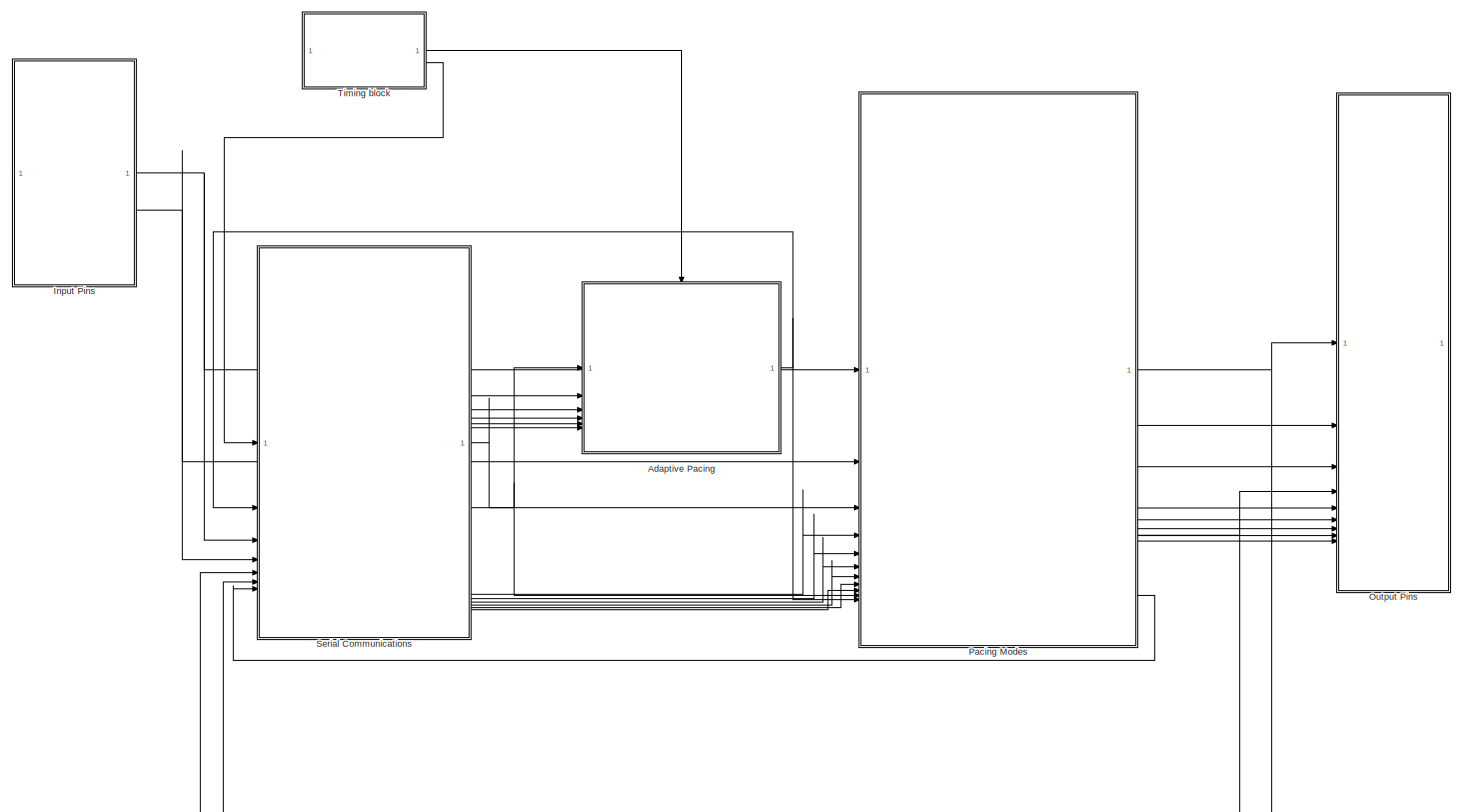
[diagram: root canvas - part 1/1, most of the canvas]
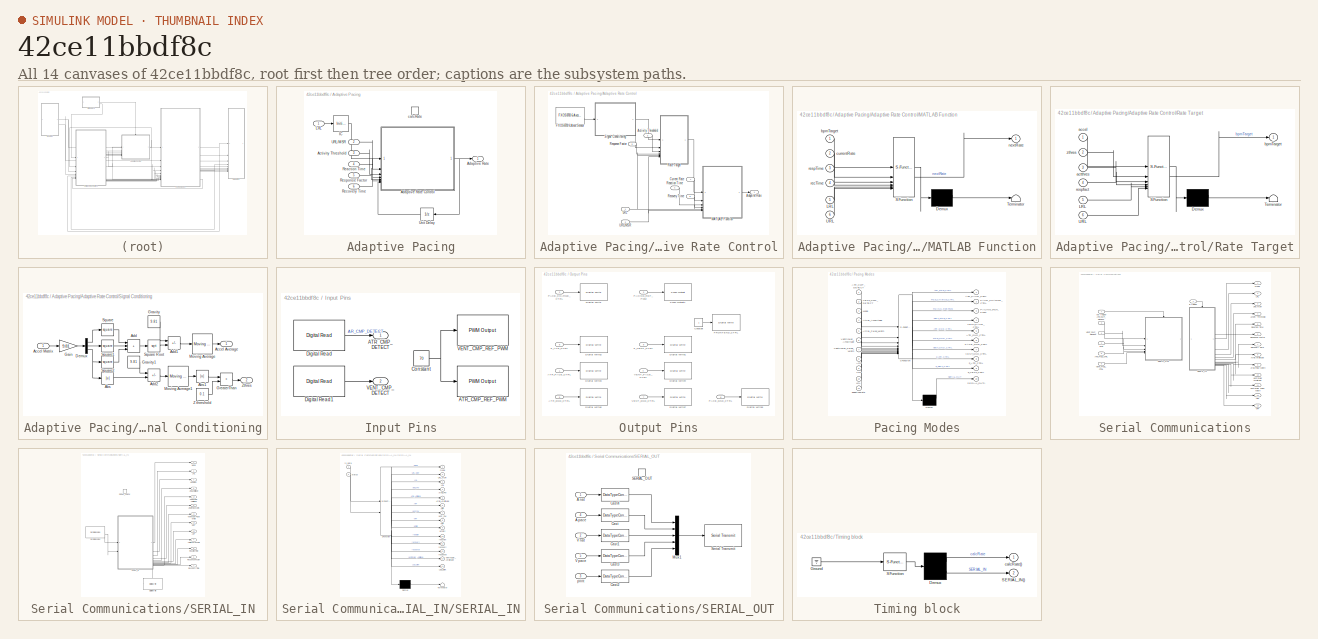
[diagram: thumbnail index - all 14 canvases of the model, root first then tree order]
MODEL slx_42ce11bbdf8c
KIND model
CONFIG AbsTol = auto
CONFIG EnableMultiTasking = on
CONFIG FixedStep = 1e-3
CONFIG MaxStep = auto
CONFIG MinStep = auto
CONFIG RelTol = 1e-3
CONFIG SampleTimeConstraint = Unconstrained
CONFIG SolverName = FixedStepAuto
CONFIG StartTime = 0.0
CONFIG StopTime = 5
BLOCK [SubSystem] Adaptive Pacing
BLOCK [Inport] Adaptive Pacing/Activity Threshold
  Port = 3
BLOCK [Outport] Adaptive Pacing/Adaptive Rate
BLOCK [SubSystem] Adaptive Pacing/Adaptive Rate Control
BLOCK [Inport] Adaptive Pacing/Adaptive Rate Control/Activity Threshold
  Port = 3
BLOCK [Outport] Adaptive Pacing/Adaptive Rate Control/Adaptive Rate
BLOCK [Inport] Adaptive Pacing/Adaptive Rate Control/Current Rate
  Port = 7
BLOCK [Reference] Adaptive Pacing/Adaptive Rate Control/FXOS8700 6-Axes Sensor  REF=frdmk64flib/FXOS8700 6-Axes Sensor
  SourceBlock = frdmk64flib/FXOS8700 6-Axes Sensor
  SourceType = freedomk64f.fxos8700
BLOCK [Inport] Adaptive Pacing/Adaptive Rate Control/LRL
BLOCK [SubSystem] Adaptive Pacing/Adaptive Rate Control/MATLAB Function
  ErrorFcn = Stateflow.Translate.translate
  PermitHierarchicalResolution = ExplicitOnly
  SFBlockType = MATLAB Function
  TreatAsAtomicUnit = on
BLOCK [Demux] Adaptive Pacing/Adaptive Rate Control/MATLAB Function/ Demux 
  Outputs = 1
BLOCK [S-Function] Adaptive Pacing/Adaptive Rate Control/MATLAB Function/ SFunction 
  EnableBusSupport = on
  FunctionName = sf_sfun
  PortCounts = [6 2]
  SFcnIsStateOwnerBlock = off
  SFunctionDeploymentMode = off
  Tag = Stateflow S-Function 5
BLOCK [Terminator] Adaptive Pacing/Adaptive Rate Control/MATLAB Function/ Terminator 
BLOCK [Inport] Adaptive Pacing/Adaptive Rate Control/MATLAB Function/LRL
  Port = 5
BLOCK [Inport] Adaptive Pacing/Adaptive Rate Control/MATLAB Function/URL
  Port = 6
BLOCK [Inport] Adaptive Pacing/Adaptive Rate Control/MATLAB Function/bpmTarget
BLOCK [Inport] Adaptive Pacing/Adaptive Rate Control/MATLAB Function/currentRate
  Port = 2
BLOCK [Outport] Adaptive Pacing/Adaptive Rate Control/MATLAB Function/nextRate
BLOCK [Inport] Adaptive Pacing/Adaptive Rate Control/MATLAB Function/recTime
  Port = 4
BLOCK [Inport] Adaptive Pacing/Adaptive Rate Control/MATLAB Function/respTime
  Port = 3
BLOCK [SubSystem] Adaptive Pacing/Adaptive Rate Control/Rate Target
  ErrorFcn = Stateflow.Translate.translate
  PermitHierarchicalResolution = ExplicitOnly
  SFBlockType = MATLAB Function
  TreatAsAtomicUnit = on
BLOCK [Demux] Adaptive Pacing/Adaptive Rate Control/Rate Target/ Demux 
  Outputs = 1
BLOCK [S-Function] Adaptive Pacing/Adaptive Rate Control/Rate Target/ SFunction 
  EnableBusSupport = on
  FunctionName = sf_sfun
  PortCounts = [6 2]
  SFcnIsStateOwnerBlock = off
  SFunctionDeploymentMode = off
  Tag = Stateflow S-Function 4
BLOCK [Terminator] Adaptive Pacing/Adaptive Rate Control/Rate Target/ Terminator 
BLOCK [Inport] Adaptive Pacing/Adaptive Rate Control/Rate Target/LRL
  Port = 5
BLOCK [Inport] Adaptive Pacing/Adaptive Rate Control/Rate Target/URL
  Port = 6
BLOCK [Inport] Adaptive Pacing/Adaptive Rate Control/Rate Target/accel
BLOCK [Inport] Adaptive Pacing/Adaptive Rate Control/Rate Target/actthres
  Port = 3
BLOCK [Outport] Adaptive Pacing/Adaptive Rate Control/Rate Target/bpmTarget
BLOCK [Inport] Adaptive Pacing/Adaptive Rate Control/Rate Target/respfact
  Port = 4
BLOCK [Inport] Adaptive Pacing/Adaptive Rate Control/Rate Target/zthres
  Port = 2
BLOCK [Inport] Adaptive Pacing/Adaptive Rate Control/Reaction Time
  Port = 4
BLOCK [Inport] Adaptive Pacing/Adaptive Rate Control/Recovery Time
  Port = 6
BLOCK [Inport] Adaptive Pacing/Adaptive Rate Control/Response Factor
  Port = 5
BLOCK [SubSystem] Adaptive Pacing/Adaptive Rate Control/Signal Conditioning
BLOCK [Abs] Adaptive Pacing/Adaptive Rate Control/Signal Conditioning/Abs
  SaturateOnIntegerOverflow = off
BLOCK [Abs] Adaptive Pacing/Adaptive Rate Control/Signal Conditioning/Abs1
  SaturateOnIntegerOverflow = off
BLOCK [Outport] Adaptive Pacing/Adaptive Rate Control/Signal Conditioning/Accel Average
BLOCK [Inport] Adaptive Pacing/Adaptive Rate Control/Signal Conditioning/Accel Matrix
BLOCK [Sum] Adaptive Pacing/Adaptive Rate Control/Signal Conditioning/Add
  IconShape = rectangular
  Inputs = +++
BLOCK [Sum] Adaptive Pacing/Adaptive Rate Control/Signal Conditioning/Add1
  IconShape = rectangular
  Inputs = -+
BLOCK [Sum] Adaptive Pacing/Adaptive Rate Control/Signal Conditioning/Add2
  IconShape = rectangular
  Inputs = -+
BLOCK [Demux] Adaptive Pacing/Adaptive Rate Control/Signal Conditioning/Demux
  Outputs = 3
BLOCK [Gain] Adaptive Pacing/Adaptive Rate Control/Signal Conditioning/Gain
  Gain = 9.81
BLOCK [Constant] Adaptive Pacing/Adaptive Rate Control/Signal Conditioning/Gravity
  Value = 9.81
BLOCK [Constant] Adaptive Pacing/Adaptive Rate Control/Signal Conditioning/Gravity1
  Value = 9.81
BLOCK [RelationalOperator] Adaptive Pacing/Adaptive Rate Control/Signal Conditioning/GreaterThan
  InputSameDT = off
  Operator = >
  OutDataTypeStr = boolean
  RndMeth = Simplest
BLOCK [Reference] Adaptive Pacing/Adaptive Rate Control/Signal Conditioning/Moving Average  REF=dspstat3/Moving
Average
  SourceBlock = dspstat3/Moving\nAverage
  SourceType = dsp.simulink.MovingAverage
BLOCK [Reference] Adaptive Pacing/Adaptive Rate Control/Signal Conditioning/Moving Average1  REF=dspstat3/Moving
Average
  SourceBlock = dspstat3/Moving\nAverage
  SourceType = dsp.simulink.MovingAverage
BLOCK [Math] Adaptive Pacing/Adaptive Rate Control/Signal Conditioning/Square
  Operator = square
BLOCK [Sqrt] Adaptive Pacing/Adaptive Rate Control/Signal Conditioning/Square Root
BLOCK [Math] Adaptive Pacing/Adaptive Rate Control/Signal Conditioning/Square1
  Operator = square
BLOCK [Math] Adaptive Pacing/Adaptive Rate Control/Signal Conditioning/Square2
  Operator = square
BLOCK [Constant] Adaptive Pacing/Adaptive Rate Control/Signal Conditioning/Z threshold
  Value = 0.1
BLOCK [Outport] Adaptive Pacing/Adaptive Rate Control/Signal Conditioning/Zthres
  Port = 2
BLOCK [Inport] Adaptive Pacing/Adaptive Rate Control/URL//MSR
  Port = 2
BLOCK [InitialCondition] Adaptive Pacing/IC
  Value = 60
BLOCK [Inport] Adaptive Pacing/LRL
BLOCK [Inport] Adaptive Pacing/Reaction Time
  Port = 4
BLOCK [Inport] Adaptive Pacing/Recovery Time
  Port = 6
BLOCK [Inport] Adaptive Pacing/Response Factor
  Port = 5
BLOCK [Inport] Adaptive Pacing/URL//MSR
  Port = 2
BLOCK [UnitDelay] Adaptive Pacing/Unit Delay
  HasFrameUpgradeWarning = on
  NameLocation = top
  SampleTime = -1
BLOCK [TriggerPort] Adaptive Pacing/calcRate
  StatesWhenEnabling = held
  TriggerType = function-call
  VariantControl = (inherit)
BLOCK [SubSystem] Input Pins
  Description = Maps the digital and analog input pins of the K64F to named variables as defined in Pacemaker Shield Explained
BLOCK [Outport] Input Pins/ATR_CMP_DETECT
BLOCK [Reference] Input Pins/ATR_CMP_REF_PWM  REF=frdmk64flib/PWM Output
  SourceBlock = frdmk64flib/PWM Output
  SourceType = freedomk64f.PWMOutput
BLOCK [Constant] Input Pins/Constant
  Value = 70
BLOCK [Reference] Input Pins/Digital Read  REF=frdmk64flib/Digital Read
  SourceBlock = frdmk64flib/Digital Read
  SourceType = freedomk64f.DigitalRead
BLOCK [Reference] Input Pins/Digital Read1  REF=frdmk64flib/Digital Read
  SourceBlock = frdmk64flib/Digital Read
  SourceType = freedomk64f.DigitalRead
BLOCK [Outport] Input Pins/VENT_CMP_DETECT
  Port = 2
BLOCK [Reference] Input Pins/VENT_CMP_REF_PWM  REF=frdmk64flib/PWM Output
  SourceBlock = frdmk64flib/PWM Output
  SourceType = freedomk64f.PWMOutput
BLOCK [SubSystem] Output Pins
BLOCK [Inport] Output Pins/ATR_GND_CTRL
  Port = 5
BLOCK [Inport] Output Pins/ATR_PACE_CTRL
BLOCK [Constant] Output Pins/Constant
BLOCK [Reference] Output Pins/Digital Write  REF=frdmk64flib/Digital Write
  SourceBlock = frdmk64flib/Digital Write
  SourceType = freedomk64f.DigitalWrite
BLOCK [Reference] Output Pins/Digital Write1  REF=frdmk64flib/Digital Write
  SourceBlock = frdmk64flib/Digital Write
  SourceType = freedomk64f.DigitalWrite
BLOCK [Reference] Output Pins/Digital Write2  REF=frdmk64flib/Digital Write
  SourceBlock = frdmk64flib/Digital Write
  SourceType = freedomk64f.DigitalWrite
BLOCK [Reference] Output Pins/Digital Write3  REF=frdmk64flib/Digital Write
  SourceBlock = frdmk64flib/Digital Write
  SourceType = freedomk64f.DigitalWrite
BLOCK [Reference] Output Pins/Digital Write4  REF=frdmk64flib/Digital Write
  SourceBlock = frdmk64flib/Digital Write
  SourceType = freedomk64f.DigitalWrite
BLOCK [Reference] Output Pins/Digital Write5  REF=frdmk64flib/Digital Write
  SourceBlock = frdmk64flib/Digital Write
  SourceType = freedomk64f.DigitalWrite
BLOCK [Reference] Output Pins/Digital Write6  REF=frdmk64flib/Digital Write
  SourceBlock = frdmk64flib/Digital Write
  SourceType = freedomk64f.DigitalWrite
BLOCK [Reference] Output Pins/Digital Write7  REF=frdmk64flib/Digital Write
  SourceBlock = frdmk64flib/Digital Write
  SourceType = freedomk64f.DigitalWrite
BLOCK [Reference] Output Pins/FRONTEND_CTRL  REF=frdmk64flib/Digital Write
  SourceBlock = frdmk64flib/Digital Write
  SourceType = freedomk64f.DigitalWrite
BLOCK [Inport] Output Pins/PACE_CHARGE_CTRL
  Port = 2
BLOCK [Inport] Output Pins/PACE_GND_CTRL
  Port = 6
BLOCK [Inport] Output Pins/PACING_REF_PWM
  Port = 3
BLOCK [Reference] Output Pins/PWM Output1  REF=frdmk64flib/PWM Output
  SourceBlock = frdmk64flib/PWM Output
  SourceType = freedomk64f.PWMOutput
BLOCK [Inport] Output Pins/VENT_GND_CTRL
  Port = 7
BLOCK [Inport] Output Pins/VENT_PACE_CTRL
  Port = 4
BLOCK [Inport] Output Pins/Z_ATR_CTRL
  Port = 8
BLOCK [Inport] Output Pins/Z_VENT_CTRL
  Port = 9
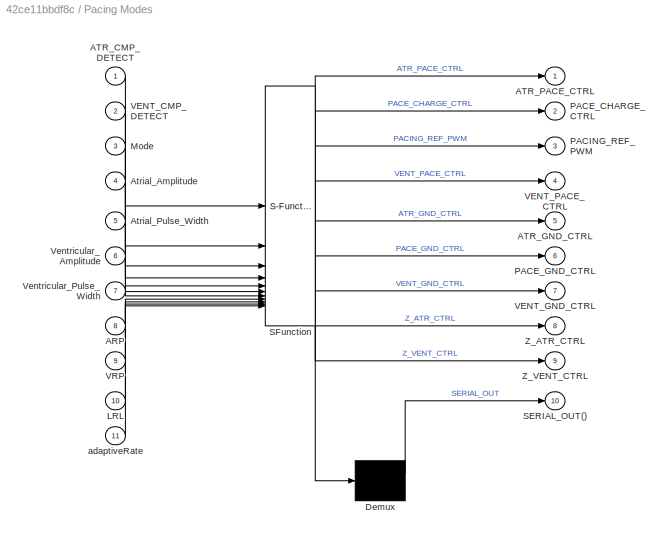
BLOCK [SubSystem] Pacing Modes
  ErrorFcn = Stateflow.Translate.translate
  PermitHierarchicalResolution = ExplicitOnly
  PortSchema = {"entries":[{"content":{"sides":[{"content":{"connectorIds":["In1","In2","In3","In10","In11","In4","In5","In6","In7","In8","In9"]},"type":"ConnectorPlacement.EquallySpacedRectSide","uuid":"f4000909-515d-4a0d-a478-4ca4207159b3"},{"content":{"connectorIds":["Out1","Out2","Out3","Out4","Out5","Out6","Out7","Out8","Out9","Out10"],"side":"RIGHT"},"type":"ConnectorPlacement.EquallySpacedRectSide","uuid"...<+348ch>
  SFBlockType = Chart
  TreatAsAtomicUnit = on
BLOCK [Demux] Pacing Modes/ Demux 
  Outputs = 1
BLOCK [S-Function] Pacing Modes/ SFunction 
  EnableBusSupport = on
  FunctionName = sf_sfun
  PortCounts = [11 10]
  SFcnIsStateOwnerBlock = off
  SFunctionDeploymentMode = off
  Tag = Stateflow S-Function 3
BLOCK [Inport] Pacing Modes/ARP
  Port = 8
BLOCK [Inport] Pacing Modes/ATR_CMP_DETECT
BLOCK [Outport] Pacing Modes/ATR_GND_CTRL
  Port = 5
BLOCK [Outport] Pacing Modes/ATR_PACE_CTRL
BLOCK [Inport] Pacing Modes/Atrial_Amplitude
  Port = 4
BLOCK [Inport] Pacing Modes/Atrial_Pulse_Width
  Port = 5
BLOCK [Inport] Pacing Modes/LRL
  Port = 10
BLOCK [Inport] Pacing Modes/Mode
  Port = 3
BLOCK [Outport] Pacing Modes/PACE_CHARGE_CTRL
  Port = 2
BLOCK [Outport] Pacing Modes/PACE_GND_CTRL
  Port = 6
BLOCK [Outport] Pacing Modes/PACING_REF_PWM
  Port = 3
BLOCK [Outport] Pacing Modes/SERIAL_OUT()
  Port = 10
BLOCK [Inport] Pacing Modes/VENT_CMP_DETECT
  Port = 2
BLOCK [Outport] Pacing Modes/VENT_GND_CTRL
  Port = 7
BLOCK [Outport] Pacing Modes/VENT_PACE_CTRL
  Port = 4
BLOCK [Inport] Pacing Modes/VRP
  Port = 9
BLOCK [Inport] Pacing Modes/Ventricular_Amplitude
  Port = 6
BLOCK [Inport] Pacing Modes/Ventricular_Pulse_Width
  Port = 7
BLOCK [Outport] Pacing Modes/Z_ATR_CTRL
  Port = 8
BLOCK [Outport] Pacing Modes/Z_VENT_CTRL
  Port = 9
BLOCK [Inport] Pacing Modes/adaptiveRate
  Port = 11
BLOCK [SubSystem] Serial Communications
BLOCK [Outport] Serial Communications/ARP
  Port = 12
BLOCK [Inport] Serial Communications/ATR_CMP_DETECT
  Port = 3
BLOCK [Inport] Serial Communications/ATR_PACE_CTRL
  Port = 5
BLOCK [Outport] Serial Communications/Activity Threshold
  Port = 4
BLOCK [Outport] Serial Communications/Atrial Amplitude
  Port = 8
BLOCK [Outport] Serial Communications/Atrial Pulse Width
  Port = 9
BLOCK [Outport] Serial Communications/LRL
  Port = 2
BLOCK [Outport] Serial Communications/Mode
BLOCK [Outport] Serial Communications/Reaction Time
  Port = 5
BLOCK [Outport] Serial Communications/Recovery Time
  Port = 7
BLOCK [Outport] Serial Communications/Response Factor
  Port = 6
BLOCK [SubSystem] Serial Communications/SERIAL_IN
BLOCK [Outport] Serial Communications/SERIAL_IN/ARP
  Port = 12
BLOCK [Outport] Serial Communications/SERIAL_IN/Activity Threshold
  Port = 4
BLOCK [Outport] Serial Communications/SERIAL_IN/Atrial Amplitude
  Port = 8
BLOCK [Outport] Serial Communications/SERIAL_IN/Atrial Pulse Width
  Port = 9
BLOCK [Reference] Serial Communications/SERIAL_IN/Digital Write  REF=frdmk64flib/Digital Write
  SourceBlock = frdmk64flib/Digital Write
  SourceType = freedomk64f.DigitalWrite
BLOCK [Outport] Serial Communications/SERIAL_IN/LRL
  Port = 2
BLOCK [Outport] Serial Communications/SERIAL_IN/Mode
BLOCK [Outport] Serial Communications/SERIAL_IN/Reaction Time
  Port = 5
BLOCK [Outport] Serial Communications/SERIAL_IN/Recovery Time
  Port = 7
BLOCK [Outport] Serial Communications/SERIAL_IN/Response Factor
  Port = 6
BLOCK [TriggerPort] Serial Communications/SERIAL_IN/SERIAL_CHECK
  StatesWhenEnabling = held
  TriggerType = function-call
  VariantControl = (inherit)
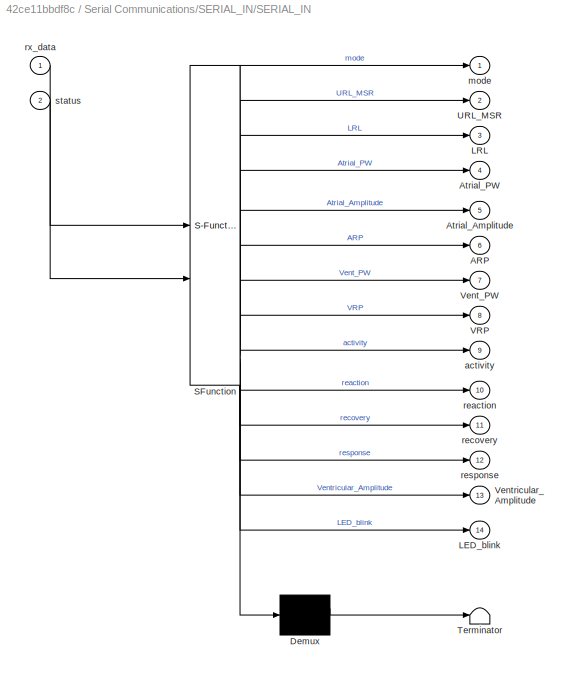
BLOCK [SubSystem] Serial Communications/SERIAL_IN/SERIAL_IN
  ErrorFcn = Stateflow.Translate.translate
  PermitHierarchicalResolution = ExplicitOnly
  PortSchema = {"entries":[{"content":{"sides":[{"content":{"connectorIds":["In1","In2"]},"type":"ConnectorPlacement.EquallySpacedRectSide","uuid":"ebf63f13-cff1-4dfd-8253-a37fed9b5330"},{"content":{"connectorIds":["Out1","Out3","Out2","Out5","Out13","Out4","Out7","Out8","Out6","Out9","Out10","Out12","Out11"],"side":"RIGHT"},"type":"ConnectorPlacement.EquallySpacedRectSide","uuid":"8941ae37-13b3-448c-8772-44937e...<+467ch>
  SFBlockType = Chart
  TreatAsAtomicUnit = on
BLOCK [Demux] Serial Communications/SERIAL_IN/SERIAL_IN/ Demux 
  Outputs = 1
BLOCK [S-Function] Serial Communications/SERIAL_IN/SERIAL_IN/ SFunction 
  EnableBusSupport = on
  FunctionName = sf_sfun
  PortCounts = [2 15]
  SFcnIsStateOwnerBlock = off
  SFunctionDeploymentMode = off
  Tag = Stateflow S-Function 2
BLOCK [Terminator] Serial Communications/SERIAL_IN/SERIAL_IN/ Terminator 
BLOCK [Outport] Serial Communications/SERIAL_IN/SERIAL_IN/ARP
  Port = 6
BLOCK [Outport] Serial Communications/SERIAL_IN/SERIAL_IN/Atrial_Amplitude
  Port = 5
BLOCK [Outport] Serial Communications/SERIAL_IN/SERIAL_IN/Atrial_PW
  Port = 4
BLOCK [Outport] Serial Communications/SERIAL_IN/SERIAL_IN/LED_blink
  Port = 14
BLOCK [Outport] Serial Communications/SERIAL_IN/SERIAL_IN/LRL
  Port = 3
BLOCK [Outport] Serial Communications/SERIAL_IN/SERIAL_IN/URL_MSR
  Port = 2
BLOCK [Outport] Serial Communications/SERIAL_IN/SERIAL_IN/VRP
  Port = 8
BLOCK [Outport] Serial Communications/SERIAL_IN/SERIAL_IN/Vent_PW
  Port = 7
BLOCK [Outport] Serial Communications/SERIAL_IN/SERIAL_IN/Ventricular_Amplitude
  Port = 13
BLOCK [Outport] Serial Communications/SERIAL_IN/SERIAL_IN/activity
  Port = 9
BLOCK [Outport] Serial Communications/SERIAL_IN/SERIAL_IN/mode
BLOCK [Outport] Serial Communications/SERIAL_IN/SERIAL_IN/reaction
  Port = 10
BLOCK [Outport] Serial Communications/SERIAL_IN/SERIAL_IN/recovery
  Port = 11
BLOCK [Outport] Serial Communications/SERIAL_IN/SERIAL_IN/response
  Port = 12
BLOCK [Inport] Serial Communications/SERIAL_IN/SERIAL_IN/rx_data
BLOCK [Inport] Serial Communications/SERIAL_IN/SERIAL_IN/status
  Port = 2
BLOCK [Reference] Serial Communications/SERIAL_IN/Serial Receive  REF=frdmk64flib/Serial Receive
  SourceBlock = frdmk64flib/Serial Receive
  SourceType = freedomk64f.SCIRead
BLOCK [Outport] Serial Communications/SERIAL_IN/URL//MSR
  Port = 3
BLOCK [Outport] Serial Communications/SERIAL_IN/VRP
  Port = 13
BLOCK [Outport] Serial Communications/SERIAL_IN/Ventricular Amplitude
  Port = 10
BLOCK [Outport] Serial Communications/SERIAL_IN/Ventricular Pulse Width
  Port = 11
BLOCK [SubSystem] Serial Communications/SERIAL_OUT
BLOCK [Inport] Serial Communications/SERIAL_OUT/A nat
BLOCK [Inport] Serial Communications/SERIAL_OUT/A pace
  Port = 4
BLOCK [DataTypeConversion] Serial Communications/SERIAL_OUT/Cast
  OutDataTypeStr = uint8
  RndMeth = Floor
  SaturateOnIntegerOverflow = off
BLOCK [DataTypeConversion] Serial Communications/SERIAL_OUT/Cast1
  OutDataTypeStr = uint8
  RndMeth = Floor
  SaturateOnIntegerOverflow = off
BLOCK [DataTypeConversion] Serial Communications/SERIAL_OUT/Cast2
  OutDataTypeStr = uint8
  RndMeth = Floor
  SaturateOnIntegerOverflow = off
BLOCK [DataTypeConversion] Serial Communications/SERIAL_OUT/Cast3
  OutDataTypeStr = uint8
  RndMeth = Floor
  SaturateOnIntegerOverflow = off
BLOCK [DataTypeConversion] Serial Communications/SERIAL_OUT/Cast4
  OutDataTypeStr = uint8
  RndMeth = Floor
  SaturateOnIntegerOverflow = off
BLOCK [Mux] Serial Communications/SERIAL_OUT/Mux1
  DisplayOption = bar
  Inputs = 5
BLOCK [TriggerPort] Serial Communications/SERIAL_OUT/SERIAL_OUT
  PortDimensions = 1
  StatesWhenEnabling = held
  TriggerType = function-call
  VariantControl = (inherit)
BLOCK [Reference] Serial Communications/SERIAL_OUT/Serial Transmit  REF=frdmk64flib/Serial Transmit
  SourceBlock = frdmk64flib/Serial Transmit
  SourceType = freedomk64f.SCIWrite
BLOCK [Inport] Serial Communications/SERIAL_OUT/V nat
  Port = 2
BLOCK [Inport] Serial Communications/SERIAL_OUT/V pace
  Port = 5
BLOCK [Inport] Serial Communications/SERIAL_OUT/print
  Port = 3
BLOCK [Outport] Serial Communications/URL//MSR
  Port = 3
BLOCK [Inport] Serial Communications/VENT_CMP_DETECT
  Port = 4
BLOCK [Inport] Serial Communications/VENT_PACE_CTRL
  Port = 6
BLOCK [Outport] Serial Communications/VRP
  Port = 13
BLOCK [Outport] Serial Communications/Ventricular Amplitude
  Port = 10
BLOCK [Outport] Serial Communications/Ventricular Pulse Width
  Port = 11
BLOCK [Inport] Serial Communications/in trigger
BLOCK [Inport] Serial Communications/out trigger
  Port = 7
BLOCK [Inport] Serial Communications/print
  Port = 2
BLOCK [SubSystem] Timing block
  ErrorFcn = Stateflow.Translate.translate
  PermitHierarchicalResolution = ExplicitOnly
  SFBlockType = Chart
  TreatAsAtomicUnit = on
BLOCK [Demux] Timing block/ Demux 
  Outputs = 2
BLOCK [Ground] Timing block/ Ground 
BLOCK [S-Function] Timing block/ SFunction 
  EnableBusSupport = on
  FunctionName = sf_sfun
  PortCounts = [1 1]
  SFcnIsStateOwnerBlock = off
  SFunctionDeploymentMode = off
  Tag = Stateflow S-Function 1
BLOCK [Outport] Timing block/SERIAL_IN()
  Port = 2
BLOCK [Outport] Timing block/calcRate()
LINE Adaptive Pacing/Activity Threshold:1 -> Adaptive Pacing/Adaptive Rate Control:3
LINE Adaptive Pacing/Adaptive Rate Control/Activity Threshold:1 -> Adaptive Pacing/Adaptive Rate Control/Rate Target:3
LINE Adaptive Pacing/Adaptive Rate Control/Current Rate:1 -> Adaptive Pacing/Adaptive Rate Control/MATLAB Function:2
LINE Adaptive Pacing/Adaptive Rate Control/FXOS8700 6-Axes Sensor:2 -> Adaptive Pacing/Adaptive Rate Control/Signal Conditioning:1
NET Adaptive Pacing/Adaptive Rate Control/LRL:1 -> Adaptive Pacing/Adaptive Rate Control/MATLAB Function:5, Adaptive Pacing/Adaptive Rate Control/Rate Target:5
LINE Adaptive Pacing/Adaptive Rate Control/MATLAB Function:1 -> Adaptive Pacing/Adaptive Rate Control/Adaptive Rate:1
LINE Adaptive Pacing/Adaptive Rate Control/Rate Target:1 -> Adaptive Pacing/Adaptive Rate Control/MATLAB Function:1
LINE Adaptive Pacing/Adaptive Rate Control/Reaction Time:1 -> Adaptive Pacing/Adaptive Rate Control/MATLAB Function:3
LINE Adaptive Pacing/Adaptive Rate Control/Recovery Time:1 -> Adaptive Pacing/Adaptive Rate Control/MATLAB Function:4
LINE Adaptive Pacing/Adaptive Rate Control/Response Factor:1 -> Adaptive Pacing/Adaptive Rate Control/Rate Target:4
LINE Adaptive Pacing/Adaptive Rate Control/Signal Conditioning/Abs1:1 -> Adaptive Pacing/Adaptive Rate Control/Signal Conditioning/GreaterThan:1
LINE Adaptive Pacing/Adaptive Rate Control/Signal Conditioning/Abs:1 -> Adaptive Pacing/Adaptive Rate Control/Signal Conditioning/Add2:2
LINE Adaptive Pacing/Adaptive Rate Control/Signal Conditioning/Accel Matrix:1 -> Adaptive Pacing/Adaptive Rate Control/Signal Conditioning/Gain:1
LINE Adaptive Pacing/Adaptive Rate Control/Signal Conditioning/Add1:1 -> Adaptive Pacing/Adaptive Rate Control/Signal Conditioning/Moving Average:1
LINE Adaptive Pacing/Adaptive Rate Control/Signal Conditioning/Add2:1 -> Adaptive Pacing/Adaptive Rate Control/Signal Conditioning/Moving Average1:1
LINE Adaptive Pacing/Adaptive Rate Control/Signal Conditioning/Add:1 -> Adaptive Pacing/Adaptive Rate Control/Signal Conditioning/Square Root:1
LINE Adaptive Pacing/Adaptive Rate Control/Signal Conditioning/Demux:1 -> Adaptive Pacing/Adaptive Rate Control/Signal Conditioning/Square:1
LINE Adaptive Pacing/Adaptive Rate Control/Signal Conditioning/Demux:2 -> Adaptive Pacing/Adaptive Rate Control/Signal Conditioning/Square1:1
NET Adaptive Pacing/Adaptive Rate Control/Signal Conditioning/Demux:3 -> Adaptive Pacing/Adaptive Rate Control/Signal Conditioning/Abs:1, Adaptive Pacing/Adaptive Rate Control/Signal Conditioning/Square2:1
LINE Adaptive Pacing/Adaptive Rate Control/Signal Conditioning/Gain:1 -> Adaptive Pacing/Adaptive Rate Control/Signal Conditioning/Demux:1
LINE Adaptive Pacing/Adaptive Rate Control/Signal Conditioning/Gravity1:1 -> Adaptive Pacing/Adaptive Rate Control/Signal Conditioning/Add2:1
LINE Adaptive Pacing/Adaptive Rate Control/Signal Conditioning/Gravity:1 -> Adaptive Pacing/Adaptive Rate Control/Signal Conditioning/Add1:1
LINE Adaptive Pacing/Adaptive Rate Control/Signal Conditioning/GreaterThan:1 -> Adaptive Pacing/Adaptive Rate Control/Signal Conditioning/Zthres:1
LINE Adaptive Pacing/Adaptive Rate Control/Signal Conditioning/Moving Average1:1 -> Adaptive Pacing/Adaptive Rate Control/Signal Conditioning/Abs1:1
LINE Adaptive Pacing/Adaptive Rate Control/Signal Conditioning/Moving Average:1 -> Adaptive Pacing/Adaptive Rate Control/Signal Conditioning/Accel Average:1
LINE Adaptive Pacing/Adaptive Rate Control/Signal Conditioning/Square Root:1 -> Adaptive Pacing/Adaptive Rate Control/Signal Conditioning/Add1:2
LINE Adaptive Pacing/Adaptive Rate Control/Signal Conditioning/Square1:1 -> Adaptive Pacing/Adaptive Rate Control/Signal Conditioning/Add:2
LINE Adaptive Pacing/Adaptive Rate Control/Signal Conditioning/Square2:1 -> Adaptive Pacing/Adaptive Rate Control/Signal Conditioning/Add:3
LINE Adaptive Pacing/Adaptive Rate Control/Signal Conditioning/Square:1 -> Adaptive Pacing/Adaptive Rate Control/Signal Conditioning/Add:1
LINE Adaptive Pacing/Adaptive Rate Control/Signal Conditioning/Z threshold:1 -> Adaptive Pacing/Adaptive Rate Control/Signal Conditioning/GreaterThan:2
LINE Adaptive Pacing/Adaptive Rate Control/Signal Conditioning:1 -> Adaptive Pacing/Adaptive Rate Control/Rate Target:1
LINE Adaptive Pacing/Adaptive Rate Control/Signal Conditioning:2 -> Adaptive Pacing/Adaptive Rate Control/Rate Target:2
NET Adaptive Pacing/Adaptive Rate Control/URL//MSR:1 -> Adaptive Pacing/Adaptive Rate Control/MATLAB Function:6, Adaptive Pacing/Adaptive Rate Control/Rate Target:6
NET Adaptive Pacing/Adaptive Rate Control:1 -> Adaptive Pacing/Adaptive Rate:1, Adaptive Pacing/Unit Delay:1
LINE Adaptive Pacing/IC:1 -> Adaptive Pacing/Adaptive Rate Control:1
LINE Adaptive Pacing/LRL:1 -> Adaptive Pacing/IC:1
LINE Adaptive Pacing/Reaction Time:1 -> Adaptive Pacing/Adaptive Rate Control:4
LINE Adaptive Pacing/Recovery Time:1 -> Adaptive Pacing/Adaptive Rate Control:6
LINE Adaptive Pacing/Response Factor:1 -> Adaptive Pacing/Adaptive Rate Control:5
LINE Adaptive Pacing/URL//MSR:1 -> Adaptive Pacing/Adaptive Rate Control:2
LINE Adaptive Pacing/Unit Delay:1 -> Adaptive Pacing/Adaptive Rate Control:7
NET Adaptive Pacing:1 -> Pacing Modes:11, Serial Communications:2
NET Input Pins/Constant:1 -> Input Pins/ATR_CMP_REF_PWM:1, Input Pins/VENT_CMP_REF_PWM:1
LINE Input Pins/Digital Read1:1 -> Input Pins/VENT_CMP_DETECT:1
LINE Input Pins/Digital Read:1 -> Input Pins/ATR_CMP_DETECT:1
NET Input Pins:1 -> Pacing Modes:1, Serial Communications:3
NET Input Pins:2 -> Pacing Modes:2, Serial Communications:4
LINE Output Pins/ATR_GND_CTRL:1 -> Output Pins/Digital Write6:1
LINE Output Pins/ATR_PACE_CTRL:1 -> Output Pins/Digital Write3:1
LINE Output Pins/Constant:1 -> Output Pins/FRONTEND_CTRL:1
LINE Output Pins/PACE_CHARGE_CTRL:1 -> Output Pins/Digital Write:1
LINE Output Pins/PACE_GND_CTRL:1 -> Output Pins/Digital Write5:1
LINE Output Pins/PACING_REF_PWM:1 -> Output Pins/PWM Output1:1
LINE Output Pins/VENT_GND_CTRL:1 -> Output Pins/Digital Write7:1
LINE Output Pins/VENT_PACE_CTRL:1 -> Output Pins/Digital Write4:1
LINE Output Pins/Z_ATR_CTRL:1 -> Output Pins/Digital Write2:1
LINE Output Pins/Z_VENT_CTRL:1 -> Output Pins/Digital Write1:1
NET Pacing Modes:1 -> Output Pins:1, Serial Communications:5
LINE Pacing Modes:10 -> Serial Communications:7
LINE Pacing Modes:2 -> Output Pins:2
LINE Pacing Modes:3 -> Output Pins:3
NET Pacing Modes:4 -> Output Pins:4, Serial Communications:6
LINE Pacing Modes:5 -> Output Pins:5
LINE Pacing Modes:6 -> Output Pins:6
LINE Pacing Modes:7 -> Output Pins:7
LINE Pacing Modes:8 -> Output Pins:8
LINE Pacing Modes:9 -> Output Pins:9
LINE Serial Communications/ATR_CMP_DETECT:1 -> Serial Communications/SERIAL_OUT:1
LINE Serial Communications/ATR_PACE_CTRL:1 -> Serial Communications/SERIAL_OUT:4
LINE Serial Communications/SERIAL_IN/SERIAL_IN:1 -> Serial Communications/SERIAL_IN/Mode:1
LINE Serial Communications/SERIAL_IN/SERIAL_IN:10 -> Serial Communications/SERIAL_IN/Reaction Time:1
LINE Serial Communications/SERIAL_IN/SERIAL_IN:11 -> Serial Communications/SERIAL_IN/Recovery Time:1
LINE Serial Communications/SERIAL_IN/SERIAL_IN:12 -> Serial Communications/SERIAL_IN/Response Factor:1
LINE Serial Communications/SERIAL_IN/SERIAL_IN:13 -> Serial Communications/SERIAL_IN/Ventricular Amplitude:1
LINE Serial Communications/SERIAL_IN/SERIAL_IN:14 -> Serial Communications/SERIAL_IN/Digital Write:1
LINE Serial Communications/SERIAL_IN/SERIAL_IN:2 -> Serial Communications/SERIAL_IN/URL//MSR:1
LINE Serial Communications/SERIAL_IN/SERIAL_IN:3 -> Serial Communications/SERIAL_IN/LRL:1
LINE Serial Communications/SERIAL_IN/SERIAL_IN:4 -> Serial Communications/SERIAL_IN/Atrial Pulse Width:1
LINE Serial Communications/SERIAL_IN/SERIAL_IN:5 -> Serial Communications/SERIAL_IN/Atrial Amplitude:1
LINE Serial Communications/SERIAL_IN/SERIAL_IN:6 -> Serial Communications/SERIAL_IN/ARP:1
LINE Serial Communications/SERIAL_IN/SERIAL_IN:7 -> Serial Communications/SERIAL_IN/Ventricular Pulse Width:1
LINE Serial Communications/SERIAL_IN/SERIAL_IN:8 -> Serial Communications/SERIAL_IN/VRP:1
LINE Serial Communications/SERIAL_IN/SERIAL_IN:9 -> Serial Communications/SERIAL_IN/Activity Threshold:1
LINE Serial Communications/SERIAL_IN/Serial Receive:1 -> Serial Communications/SERIAL_IN/SERIAL_IN:1
LINE Serial Communications/SERIAL_IN/Serial Receive:2 -> Serial Communications/SERIAL_IN/SERIAL_IN:2
LINE Serial Communications/SERIAL_IN:1 -> Serial Communications/Mode:1
LINE Serial Communications/SERIAL_IN:10 -> Serial Communications/Ventricular Amplitude:1
LINE Serial Communications/SERIAL_IN:11 -> Serial Communications/Ventricular Pulse Width:1
LINE Serial Communications/SERIAL_IN:12 -> Serial Communications/ARP:1
LINE Serial Communications/SERIAL_IN:13 -> Serial Communications/VRP:1
LINE Serial Communications/SERIAL_IN:2 -> Serial Communications/LRL:1
LINE Serial Communications/SERIAL_IN:3 -> Serial Communications/URL//MSR:1
LINE Serial Communications/SERIAL_IN:4 -> Serial Communications/Activity Threshold:1
LINE Serial Communications/SERIAL_IN:5 -> Serial Communications/Reaction Time:1
LINE Serial Communications/SERIAL_IN:6 -> Serial Communications/Response Factor:1
LINE Serial Communications/SERIAL_IN:7 -> Serial Communications/Recovery Time:1
LINE Serial Communications/SERIAL_IN:8 -> Serial Communications/Atrial Amplitude:1
LINE Serial Communications/SERIAL_IN:9 -> Serial Communications/Atrial Pulse Width:1
LINE Serial Communications/SERIAL_OUT/A nat:1 -> Serial Communications/SERIAL_OUT/Cast4:1
LINE Serial Communications/SERIAL_OUT/A pace:1 -> Serial Communications/SERIAL_OUT/Cast:1
LINE Serial Communications/SERIAL_OUT/Cast1:1 -> Serial Communications/SERIAL_OUT/Mux1:3
LINE Serial Communications/SERIAL_OUT/Cast2:1 -> Serial Communications/SERIAL_OUT/Mux1:5
LINE Serial Communications/SERIAL_OUT/Cast3:1 -> Serial Communications/SERIAL_OUT/Mux1:4
LINE Serial Communications/SERIAL_OUT/Cast4:1 -> Serial Communications/SERIAL_OUT/Mux1:1
LINE Serial Communications/SERIAL_OUT/Cast:1 -> Serial Communications/SERIAL_OUT/Mux1:2
LINE Serial Communications/SERIAL_OUT/Mux1:1 -> Serial Communications/SERIAL_OUT/Serial Transmit:1
LINE Serial Communications/SERIAL_OUT/V nat:1 -> Serial Communications/SERIAL_OUT/Cast1:1
LINE Serial Communications/SERIAL_OUT/V pace:1 -> Serial Communications/SERIAL_OUT/Cast3:1
LINE Serial Communications/SERIAL_OUT/print:1 -> Serial Communications/SERIAL_OUT/Cast2:1
LINE Serial Communications/VENT_CMP_DETECT:1 -> Serial Communications/SERIAL_OUT:2
LINE Serial Communications/VENT_PACE_CTRL:1 -> Serial Communications/SERIAL_OUT:5
LINE Serial Communications/in trigger:1 -> Serial Communications/SERIAL_IN:trigger
LINE Serial Communications/out trigger:1 -> Serial Communications/SERIAL_OUT:trigger
LINE Serial Communications/print:1 -> Serial Communications/SERIAL_OUT:3
LINE Serial Communications:1 -> Pacing Modes:3
LINE Serial Communications:10 -> Pacing Modes:6
LINE Serial Communications:11 -> Pacing Modes:7
LINE Serial Communications:12 -> Pacing Modes:8
LINE Serial Communications:13 -> Pacing Modes:9
NET Serial Communications:2 -> Adaptive Pacing:1, Pacing Modes:10
LINE Serial Communications:3 -> Adaptive Pacing:2
LINE Serial Communications:4 -> Adaptive Pacing:3
LINE Serial Communications:5 -> Adaptive Pacing:4
LINE Serial Communications:6 -> Adaptive Pacing:5
LINE Serial Communications:7 -> Adaptive Pacing:6
LINE Serial Communications:8 -> Pacing Modes:4
LINE Serial Communications:9 -> Pacing Modes:5
LINE Timing block:1 -> Adaptive Pacing:trigger
LINE Timing block:2 -> Serial Communications:1
note: NET lines group one-source signal fan-out (src -> all destinations, sorted); 1:1 wires keep LINE
CHART Timing block states=2 transitions=3
  STATE_LABEL 'rate\nentry:\ncalcRate()'
  STATE_LABEL 'serial\nentry:\nSERIAL_IN()'
CHART Serial Communications/SERIAL_IN/SERIAL_IN states=3 transitions=4
  STATE_LABEL 'success\nentry:\nLED_blink = 1;\n%packet parse\nmode = rx_data(1);\nLRL = rx_data(2);\nURL_MSR = rx_data(3);\nAtrial_Amplitude = double(rx_data(4)/10);\nVentricular_Amplitude = double(rx_data(5)/10);\nAtrial_PW = rx_data(6);\nVent_PW = rx_data(7);\nVRP = uint32(rx_data(8)*10);\nARP = uint32(rx_data(9)*10);\nactivity = rx_data(10);\nreaction = rx_data(11);\nresponse = rx_data(12);\nrecovery = rx_data(13);\nrsvd1 = ...<+54ch>'
  STATE_LABEL 'Initial\nentry:\nmode = 255;\n'
  STATE_LABEL 'standby\nentry:\nLED_blink = 0;'
CHART Pacing Modes states=37 transitions=57
  STATE_LABEL 'VOO\n'
  STATE_LABEL 'charge_discharge\nentry:\n%set rates\nRate_ms = double(1000/(LRL/60))\nventDutyCycle = (Ventricular_Amplitude/5)*100\nventWait = single(Rate_ms - Ventricular_Pulse_Width)\n%discharge c21\nPACE_GND_CTRL = 0\nVENT_PACE_CTRL = 0\nZ_ATR_CTRL = 0\nZ_VENT_CTRL = 0\nATR_PACE_CTRL = 0\nATR_GND_CTRL = 0\nVENT_GND_CTRL = 1\n%charge c22\nVENT_PACE_CTRL = 0\nATR_PACE_CTRL = 0\nPACING_REF_PWM = double(ventDutyCycle)\nPACE_CHARG...<+11ch>'
  STATE_LABEL 'pace\nPACE_CHARGE_CTRL = 0\nPACE_GND_CTRL = 1\nATR_PACE_CTRL = 0\nATR_GND_CTRL = 0\nZ_ATR_CTRL = 0\nZ_VENT_CTRL = 0\nVENT_GND_CTRL = 0\nVENT_PACE_CTRL = 1\nSERIAL_OUT()\n'
  STATE_LABEL '[et(msec) >= ventWait]'
  STATE_LABEL '[et(msec) >= Ventricular_Pulse_Width]'
  STATE_LABEL 'charge_discharge\nentry:\n%set rates\nRate_ms = double(1000/(LRL/60))\nventDutyCycle = (Ventricular_Amplitude/5)*100\nventWait = single(Rate_ms - Ventricular_Pulse_Width)\n%discharge c21\nPACE_GND_CTRL = 0\nVENT_PACE_CTRL = 0\nZ_ATR_CTRL = 0\nZ_VENT_CTRL = 0\nATR_PACE_CTRL = 0\nATR_GND_CTRL = 0\nVENT_GND_CTRL = 1\n%charge c22\nVENT_PACE_CTRL = 0\nATR_PACE_CTRL = 0\nPACING_REF_PWM = double(ventDutyCycle)\nPACE_CHARG...<+11ch>'
  STATE_LABEL 'pace\nPACE_CHARGE_CTRL = 0\nPACE_GND_CTRL = 1\nATR_PACE_CTRL = 0\nATR_GND_CTRL = 0\nZ_ATR_CTRL = 0\nZ_VENT_CTRL = 0\nVENT_GND_CTRL = 0\nVENT_PACE_CTRL = 1\nSERIAL_OUT()\n'
  STATE_LABEL 'AAI\n'
  STATE_LABEL 'charge_discharge_EN\nentry:\n%set rate\nRate_ms = double(1000/(LRL/60))\natrialDutyCycle = (Atrial_Amplitude/5)*100\natrWait = single(Rate_ms - Atrial_Pulse_Width)\ntimeToPace = atrWait\n%discharge c21\nPACE_GND_CTRL = 0\nATR_PACE_CTRL = 0\nZ_ATR_CTRL = 0\nZ_VENT_CTRL = 0\nVENT_PACE_CTRL = 0\nVENT_GND_CTRL = 0\nATR_GND_CTRL = 1\n%charge c22\nATR_PACE_CTRL = 0\nVENT_PACE_CTRL = 0\nPACING_REF_PWM = atrialDutyCycle\nPA...<+19ch>'
  STATE_LABEL 'refractory_period\nentry:\n'
  STATE_LABEL 'trigger\nentry:\nSERIAL_OUT()'
  STATE_LABEL 'sense_wait\n'
  STATE_LABEL 'pace\nentry:\nPACE_CHARGE_CTRL = 0\nPACE_GND_CTRL = 1\nVENT_PACE_CTRL = 0\nVENT_GND_CTRL = 0\nZ_ATR_CTRL = 0\nZ_VENT_CTRL = 0\nATR_GND_CTRL = 0\nATR_PACE_CTRL = 1\nSERIAL_OUT()\n%reset timer\ntimeToPace = atrWait\n'
  STATE_LABEL '[ATR_CMP_DETECT == 1]'
  STATE_LABEL '[et(msec) >= ARP]'
  STATE_LABEL '[et(msec) >= timeToPace -single( ARP)]'
  STATE_LABEL '[et(msec) >= Atrial_Pulse_Width]'
  STATE_LABEL 'charge_discharge_EN\nentry:\n%set rate\nRate_ms = double(1000/(LRL/60))\natrialDutyCycle = (Atrial_Amplitude/5)*100\natrWait = single(Rate_ms - Atrial_Pulse_Width)\ntimeToPace = atrWait\n%discharge c21\nPACE_GND_CTRL = 0\nATR_PACE_CTRL = 0\nZ_ATR_CTRL = 0\nZ_VENT_CTRL = 0\nVENT_PACE_CTRL = 0\nVENT_GND_CTRL = 0\nATR_GND_CTRL = 1\n%charge c22\nATR_PACE_CTRL = 0\nVENT_PACE_CTRL = 0\nPACING_REF_PWM = atrialDutyCycle\nPA...<+19ch>'
  STATE_LABEL 'refractory_period\nentry:\n'
  STATE_LABEL 'trigger\nentry:\nSERIAL_OUT()'
  STATE_LABEL 'sense_wait\n'
  STATE_LABEL 'pace\nentry:\nPACE_CHARGE_CTRL = 0\nPACE_GND_CTRL = 1\nVENT_PACE_CTRL = 0\nVENT_GND_CTRL = 0\nZ_ATR_CTRL = 0\nZ_VENT_CTRL = 0\nATR_GND_CTRL = 0\nATR_PACE_CTRL = 1\nSERIAL_OUT()\n%reset timer\ntimeToPace = atrWait\n'
  STATE_LABEL 'AOO\n'
  STATE_LABEL 'charge_discharge\nentry:\n%set rate if changed\nRate_ms = double((1000)/(LRL/60))\natrialDutyCycle = (Atrial_Amplitude/5)*100\natrWait = single(Rate_ms - Atrial_Pulse_Width)\n%discharge c21\nPACE_GND_CTRL = 0\nATR_PACE_CTRL = 0\nZ_ATR_CTRL = 0\nZ_VENT_CTRL = 0\nVENT_PACE_CTRL = 0\nVENT_GND_CTRL = 0\nATR_GND_CTRL = 1\n%charge c22\nATR_PACE_CTRL = 0\nVENT_PACE_CTRL = 0\nPACING_REF_PWM = atrialDutyCycle\nPACE_CHARGE_C...<+8ch>'
  STATE_LABEL 'pace\nPACE_CHARGE_CTRL = 0\nPACE_GND_CTRL = 1\nVENT_PACE_CTRL = 0\nVENT_GND_CTRL = 0\nZ_ATR_CTRL = 0\nZ_VENT_CTRL = 0\nATR_GND_CTRL = 0\nATR_PACE_CTRL = 1\nSERIAL_OUT()\n'
  STATE_LABEL '[et(msec) >= atrWait]'
  STATE_LABEL '[et(msec) >= Atrial_Pulse_Width]'
  STATE_LABEL 'charge_discharge\nentry:\n%set rate if changed\nRate_ms = double((1000)/(LRL/60))\natrialDutyCycle = (Atrial_Amplitude/5)*100\natrWait = single(Rate_ms - Atrial_Pulse_Width)\n%discharge c21\nPACE_GND_CTRL = 0\nATR_PACE_CTRL = 0\nZ_ATR_CTRL = 0\nZ_VENT_CTRL = 0\nVENT_PACE_CTRL = 0\nVENT_GND_CTRL = 0\nATR_GND_CTRL = 1\n%charge c22\nATR_PACE_CTRL = 0\nVENT_PACE_CTRL = 0\nPACING_REF_PWM = atrialDutyCycle\nPACE_CHARGE_C...<+8ch>'
  STATE_LABEL 'pace\nPACE_CHARGE_CTRL = 0\nPACE_GND_CTRL = 1\nVENT_PACE_CTRL = 0\nVENT_GND_CTRL = 0\nZ_ATR_CTRL = 0\nZ_VENT_CTRL = 0\nATR_GND_CTRL = 0\nATR_PACE_CTRL = 1\nSERIAL_OUT()\n'
  STATE_LABEL 'VVI\n'
  STATE_LABEL 'charge_discharge_EN\nentry:\n%\nRate_ms = double(1000/(LRL/60))\nventDutyCycle = (Ventricular_Amplitude/5)*100\nventWait = single(Rate_ms - Ventricular_Pulse_Width)\ntimeToPace = ventWait\n%discharge c21\nPACE_GND_CTRL = 0\nVENT_PACE_CTRL = 0\nZ_VENT_CTRL = 0\nZ_ATR_CTRL = 0\nATR_PACE_CTRL = 0\nATR_GND_CTRL = 0\nVENT_GND_CTRL = 1\n%charge c22\nVENT_PACE_CTRL = 0\nATR_PACE_CTRL = 0\nPACING_REF_PWM = double(ventDutyC...<+27ch>'
  STATE_LABEL 'refractory_period\nentry:\n'
  STATE_LABEL 'trigger\nentry:\nSERIAL_OUT()'
  STATE_LABEL 'sense_wait\n'
  STATE_LABEL 'pace\nentry:\nPACE_CHARGE_CTRL = 0\nPACE_GND_CTRL = 1\nATR_PACE_CTRL = 0\nATR_GND_CTRL = 0\nZ_VENT_CTRL = 0\nZ_ATR_CTRL = 0\nVENT_GND_CTRL = 0\nVENT_PACE_CTRL = 1\nSERIAL_OUT()\n%reset timer\ntimeToPace = ventWait\n'
  STATE_LABEL '[VENT_CMP_DETECT == 1]'
  STATE_LABEL '[et(msec) >= VRP]'
  STATE_LABEL '[et(msec) >= timeToPace - single(VRP)]'
  STATE_LABEL '[et(msec) >= Ventricular_Pulse_Width]'
  STATE_LABEL 'charge_discharge_EN\nentry:\n%\nRate_ms = double(1000/(LRL/60))\nventDutyCycle = (Ventricular_Amplitude/5)*100\nventWait = single(Rate_ms - Ventricular_Pulse_Width)\ntimeToPace = ventWait\n%discharge c21\nPACE_GND_CTRL = 0\nVENT_PACE_CTRL = 0\nZ_VENT_CTRL = 0\nZ_ATR_CTRL = 0\nATR_PACE_CTRL = 0\nATR_GND_CTRL = 0\nVENT_GND_CTRL = 1\n%charge c22\nVENT_PACE_CTRL = 0\nATR_PACE_CTRL = 0\nPACING_REF_PWM = double(ventDutyC...<+27ch>'
CHART Adaptive Pacing/Adaptive Rate Control/Rate Target states=1 transitions=1
  STATE_LABEL 'eML_blk_kernel()'
  STATE_LABEL 'SCRIPT:\nfunction bpmTarget = fcn(accel, zthres, actthres, respfact, LRL, URL)\n\nactivity = accel;\n\nif (activity > actthres) && zthres\n    diff = activity - actthres;\n    bpmTarget = LRL + respfact*diff;\n    \n    if bpmTarget > URL\n        bpmTarget = URL;\n    elseif bpmTarget < LRL\n        bpmTarget = LRL;\n    end\nelse\n    bpmTarget = LRL;    \nend\n'
CHART Adaptive Pacing/Adaptive Rate Control/MATLAB Function states=1 transitions=1
  STATE_LABEL 'eML_blk_kernel()'
  STATE_LABEL 'SCRIPT:\nfunction nextRate = rateChange(bpmTarget, currentRate, respTime, recTime, LRL, URL)\n\n\nif bpmTarget > currentRate\n    slopemax = (URL-LRL)/(recTime*100);\n    slopemin = slopemax*0.25;\nelse \n    slopemax = (URL-LRL)/(respTime*100);\n    slopemin = slopemax*0.5;\nend\n\ngap = bpmTarget - currentRate;\nslope = gap/(URL-LRL) * slopemax;\n\nif abs(slope)<slopemin && abs(gap) > 0.01\n    slope = slopemin...<+62ch>'
CHART  states=0 transitions=0
CHART  states=0 transitions=0
CHART  states=0 transitions=0
CHART  states=0 transitions=0
CHART  states=0 transitions=0
